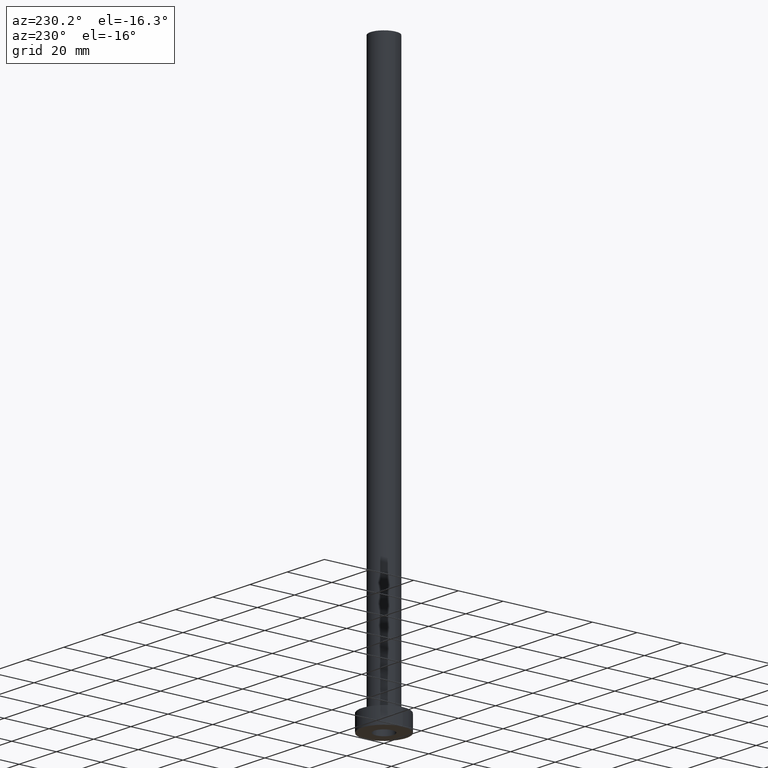
[diagram: clean part render]
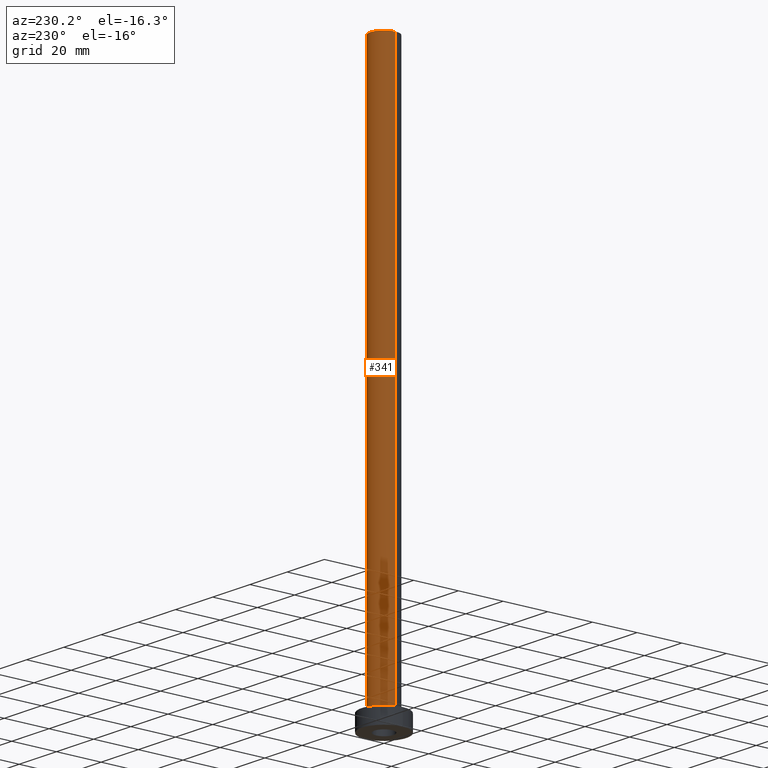
[diagram: same view with one face highlighted and labeled with its STEP entity id]
A machine part, auxiliary view. The second image highlights one B-rep face of the part: STEP entity #341.
In plain terms, the highlighted cylindrical surface (edge-blend (fillet) strip) has radius 6 mm, axis along (-0, -0, -1).
Its self-contained STEP definition (entity closure, byte-faithful):
#8 = EDGE_CURVE ( 'NONE', #112, #48, #203, .T. ) ;
#33 = CYLINDRICAL_SURFACE ( 'NONE', #361, 6.000000000000000888 ) ;
#44 = AXIS2_PLACEMENT_3D ( 'NONE', #348, #178, #320 ) ;
#48 = VERTEX_POINT ( 'NONE', #271 ) ;
#56 = CARTESIAN_POINT ( 'NONE',  ( -6.000000000000000888, 0.000000000000000000, 250.0000000000000000 ) ) ;
#64 = DIRECTION ( 'NONE',  ( -0.000000000000000000, -0.000000000000000000, -1.000000000000000000 ) ) ;
#75 = FACE_OUTER_BOUND ( 'NONE', #137, .T. ) ;
#104 = CIRCLE ( 'NONE', #44, 6.000000000000000888 ) ;
#112 = VERTEX_POINT ( 'NONE', #201 ) ;
#120 = CARTESIAN_POINT ( 'NONE',  ( 0.000000000000000000, 0.000000000000000000, 250.0000000000000000 ) ) ;
#137 = EDGE_LOOP ( 'NONE', ( #329, #222, #223, #412 ) ) ;
#142 = DIRECTION ( 'NONE',  ( -0.000000000000000000, -0.000000000000000000, -1.000000000000000000 ) ) ;
#143 = CARTESIAN_POINT ( 'NONE',  ( -6.000000000000000888, 0.000000000000000000, 250.0000000000000000 ) ) ;
#174 = CARTESIAN_POINT ( 'NONE',  ( -6.000000000000000888, 0.000000000000000000, 7.700000000000012612 ) ) ;
#178 = DIRECTION ( 'NONE',  ( 0.000000000000000000, 0.000000000000000000, 1.000000000000000000 ) ) ;
#182 = DIRECTION ( 'NONE',  ( -0.000000000000000000, -0.000000000000000000, -1.000000000000000000 ) ) ;
#201 = CARTESIAN_POINT ( 'NONE',  ( 6.000000000000000888, 7.347880794884120722E-16, 250.0000000000000000 ) ) ;
#203 = LINE ( 'NONE', #406, #332 ) ;
#222 = ORIENTED_EDGE ( 'NONE', *, *, #8, .T. ) ;
#223 = ORIENTED_EDGE ( 'NONE', *, *, #356, .T. ) ;
#246 = DIRECTION ( 'NONE',  ( -1.000000000000000000, 0.000000000000000000, 0.000000000000000000 ) ) ;
#252 = VECTOR ( 'NONE', #142, 1000.000000000000000 ) ;
#261 = DIRECTION ( 'NONE',  ( 1.000000000000000000, 0.000000000000000000, 0.000000000000000000 ) ) ;
#271 = CARTESIAN_POINT ( 'NONE',  ( 6.000000000000000888, 7.347880794884120722E-16, 7.700000000000012612 ) ) ;
#279 = DIRECTION ( 'NONE',  ( 0.000000000000000000, 0.000000000000000000, 1.000000000000000000 ) ) ;
#281 = AXIS2_PLACEMENT_3D ( 'NONE', #417, #279, #261 ) ;
#294 = EDGE_CURVE ( 'NONE', #112, #295, #104, .T. ) ;
#295 = VERTEX_POINT ( 'NONE', #143 ) ;
#300 = VERTEX_POINT ( 'NONE', #174 ) ;
#311 = LINE ( 'NONE', #56, #252 ) ;
#320 = DIRECTION ( 'NONE',  ( 1.000000000000000000, 0.000000000000000000, 0.000000000000000000 ) ) ;
#329 = ORIENTED_EDGE ( 'NONE', *, *, #294, .F. ) ;
#332 = VECTOR ( 'NONE', #64, 1000.000000000000000 ) ;
#341 = ADVANCED_FACE ( 'NONE', ( #75 ), #33, .T. ) ;
#348 = CARTESIAN_POINT ( 'NONE',  ( 0.000000000000000000, 0.000000000000000000, 250.0000000000000000 ) ) ;
#356 = EDGE_CURVE ( 'NONE', #48, #300, #418, .T. ) ;
#361 = AXIS2_PLACEMENT_3D ( 'NONE', #120, #182, #246 ) ;
#406 = CARTESIAN_POINT ( 'NONE',  ( 6.000000000000000888, 7.347880794884120722E-16, 250.0000000000000000 ) ) ;
#412 = ORIENTED_EDGE ( 'NONE', *, *, #425, .F. ) ;
#417 = CARTESIAN_POINT ( 'NONE',  ( 0.000000000000000000, 0.000000000000000000, 7.700000000000012612 ) ) ;
#418 = CIRCLE ( 'NONE', #281, 6.000000000000000888 ) ;
#425 = EDGE_CURVE ( 'NONE', #295, #300, #311, .T. ) ;